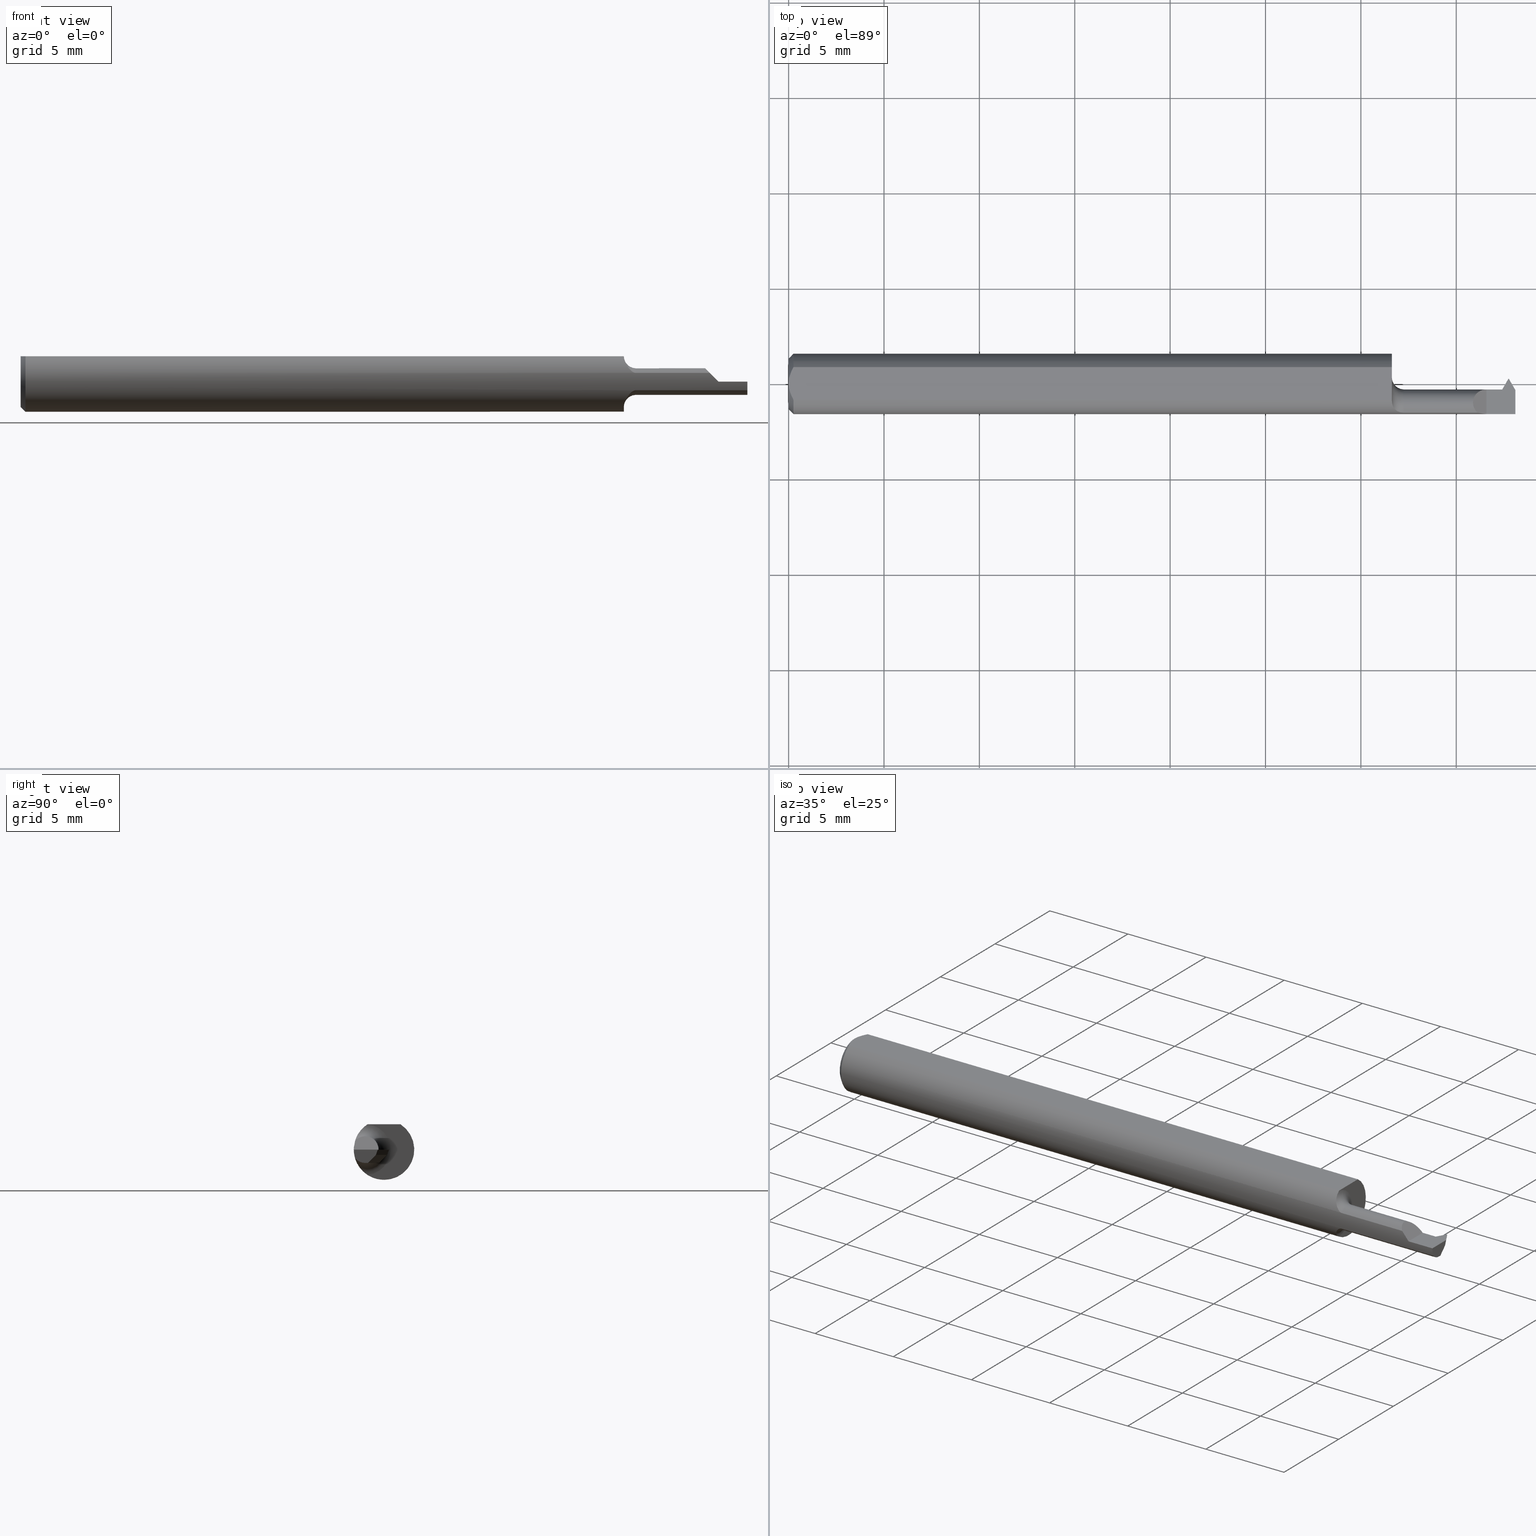
[diagram: canonical four-view strip — front | top / right | iso, engineering-drawing reading convention]
A machine part, canonical four-view strip (front | top / right | iso — engineering-drawing reading convention). The complete STEP part file that produces these views, byte-faithful:
ISO-10303-21;
HEADER;
FILE_DESCRIPTION (( 'STEP AP203' ),
    '1' );
FILE_NAME ('230031-TT075200.STEP',
    '2025-04-25T21:40:48',
    ( '' ),
    ( '' ),
    'SwSTEP 2.0',
    'SolidWorks 2024',
    '' );
FILE_SCHEMA (( 'CONFIG_CONTROL_DESIGN' ));
ENDSEC;

DATA;
#1 = LINE ( 'NONE', #129, #562 ) ;
#2 = EDGE_CURVE ( 'NONE', #265, #480, #497, .T. ) ;
#3 = CARTESIAN_POINT ( 'NONE',  ( 1.252811054366238741, -0.05456945414940287536, -0.03043068662638008862 ) ) ;
#4 = TOROIDAL_SURFACE ( 'NONE', #765, 0.05250000000000002581, 0.02499999999999993894 ) ;
#5 = AXIS2_PLACEMENT_3D ( 'NONE', #143, #526, #756 ) ;
#6 = EDGE_CURVE ( 'NONE', #246, #109, #758, .T. ) ;
#7 = EDGE_LOOP ( 'NONE', ( #553, #686, #362 ) ) ;
#8 = CARTESIAN_POINT ( 'NONE',  ( 1.244999999999999885, 0.06234999999999996795, 0.000000000000000000 ) ) ;
#9 = ORIENTED_EDGE ( 'NONE', *, *, #6, .F. ) ;
#10 = CC_DESIGN_APPROVAL ( #709, ( #159 ) ) ;
#11 = ORIENTED_EDGE ( 'NONE', *, *, #622, .T. ) ;
#12 = CARTESIAN_POINT ( 'NONE',  ( 1.540584186718110260, -0.4592466781530761266, -0.5722278292539604294 ) ) ;
#13 = EDGE_LOOP ( 'NONE', ( #769, #490 ) ) ;
#14 = B_SPLINE_CURVE_WITH_KNOTS ( 'NONE', 3,
 ( #253, #73, #330, #68, #320, #133, #3, #141, #264, #566, #625, #390 ),
 .UNSPECIFIED., .F., .F.,
 ( 4, 2, 2, 2, 2, 4 ),
 ( 1.964775102937643306E-07, 0.0001727984807541077690, 0.0003454004839979218119, 0.0006906044904855495725, 0.001035808496973177496, 0.001381012503460805202 ),
 .UNSPECIFIED. ) ;
#15 = ORIENTED_EDGE ( 'NONE', *, *, #347, .F. ) ;
#16 =( BOUNDED_CURVE ( )  B_SPLINE_CURVE ( 3, ( #447, #316, #690, #78 ),
 .UNSPECIFIED., .F., .T. ) 
 B_SPLINE_CURVE_WITH_KNOTS ( ( 4, 4 ),
 ( 1.204277183876086177, 1.570796326794897668 ),
 .UNSPECIFIED. ) 
 CURVE ( )  GEOMETRIC_REPRESENTATION_ITEM ( )  RATIONAL_B_SPLINE_CURVE ( ( 1.000000000000000000, 0.9888366050426361520, 0.9888366050426361520, 1.000000000000000000 ) ) 
 REPRESENTATION_ITEM ( '' )  );
#17 = MECHANICAL_CONTEXT ( 'NONE', #131, 'mechanical' ) ;
#18 = EDGE_CURVE ( 'NONE', #754, #653, #322, .T. ) ;
#19 = ORIENTED_EDGE ( 'NONE', *, *, #49, .T. ) ;
#20 = VECTOR ( 'NONE', #716, 39.37007874015748143 ) ;
#21 = LINE ( 'NONE', #467, #35 ) ;
#22 = CALENDAR_DATE ( 2025, 25, 4 ) ;
#23 = ORIENTED_EDGE ( 'NONE', *, *, #2, .T. ) ;
#24 = LINE ( 'NONE', #40, #169 ) ;
#25 = CARTESIAN_POINT ( 'NONE',  ( 1.475228371895891621, -0.02177601815582000389, -0.02155757741455697346 ) ) ;
#26 = AXIS2_PLACEMENT_3D ( 'NONE', #135, #550, #556 ) ;
#27 = COORDINATED_UNIVERSAL_TIME_OFFSET ( 8, 0, .BEHIND. ) ;
#28 = ORIENTED_EDGE ( 'NONE', *, *, #560, .F. ) ;
#29 = DIRECTION ( 'NONE',  ( 0.000000000000000000, 0.000000000000000000, 1.000000000000000000 ) ) ;
#30 = EDGE_CURVE ( 'NONE', #603, #104, #251, .T. ) ;
#31 = LINE ( 'NONE', #588, #386 ) ;
#32 = ORIENTED_EDGE ( 'NONE', *, *, #108, .T. ) ;
#33 = CARTESIAN_POINT ( 'NONE',  ( 1.244999999999999885, -0.03398449163449160371, 0.05227405502106346330 ) ) ;
#34 = DIRECTION ( 'NONE',  ( 0.000000000000000000, 1.000000000000000000, 0.000000000000000000 ) ) ;
#35 = VECTOR ( 'NONE', #712, 39.37007874015748143 ) ;
#36 = EDGE_CURVE ( 'NONE', #311, #395, #267, .T. ) ;
#37 = VECTOR ( 'NONE', #280, 39.37007874015748143 ) ;
#38 = CARTESIAN_POINT ( 'NONE',  ( 0.004671770759546948343, 0.02323517832780106970, 0.05234999999999998682 ) ) ;
#39 = EDGE_LOOP ( 'NONE', ( #84, #718, #32, #256 ) ) ;
#40 = CARTESIAN_POINT ( 'NONE',  ( 1.472798294077828807, -0.01134999999999997816, 0.000000000000000000 ) ) ;
#41 = CARTESIAN_POINT ( 'NONE',  ( -3.937007874019685528E-05, -0.01007250438538935533, -0.02750000000000004871 ) ) ;
#42 = ADVANCED_FACE ( 'NONE', ( #134 ), #559, .F. ) ;
#43 = VERTEX_POINT ( 'NONE', #627 ) ;
#44 = DIRECTION ( 'NONE',  ( -0.1046361662350182992, 0.1812351562282726036, 0.9778573980200545579 ) ) ;
#45 = DIRECTION ( 'NONE',  ( 1.000000000000000000, 0.000000000000000000, 0.000000000000000000 ) ) ;
#46 = PERSON_AND_ORGANIZATION_ROLE ( 'creator' ) ;
#47 = ORIENTED_EDGE ( 'NONE', *, *, #36, .F. ) ;
#48 = CARTESIAN_POINT ( 'NONE',  ( 1.433925765466284474, -0.06235000000000000264, 0.006074234533715691838 ) ) ;
#49 = EDGE_CURVE ( 'NONE', #653, #442, #184, .T. ) ;
#50 = PLANE ( 'NONE',  #474 ) ;
#51 = AXIS2_PLACEMENT_3D ( 'NONE', #271, #302, #789 ) ;
#52 = AXIS2_PLACEMENT_3D ( 'NONE', #263, #502, #431 ) ;
#53 = EDGE_LOOP ( 'NONE', ( #776, #752, #780, #268 ) ) ;
#54 = CARTESIAN_POINT ( 'NONE',  ( 1.422097359848866427, -0.05972451737451732467, 0.01790264015113353369 ) ) ;
#55 = CARTESIAN_POINT ( 'NONE',  ( 1.269999999999999796, -0.03885000000000005116, 0.000000000000000000 ) ) ;
#56 = SHAPE_DEFINITION_REPRESENTATION ( #244, #665 ) ;
#57 = ORIENTED_EDGE ( 'NONE', *, *, #374, .T. ) ;
#58 = VECTOR ( 'NONE', #680, 39.37007874015748143 ) ;
#59 = DIRECTION ( 'NONE',  ( 0.1792828666815822758, 0.1792828666815822758, 0.9673237862416430577 ) ) ;
#60 = CARTESIAN_POINT ( 'NONE',  ( 1.246872896884827719, -0.04792976935622884210, 0.04070915924459904411 ) ) ;
#61 = CC_DESIGN_DATE_AND_TIME_ASSIGNMENT ( #343, #584, ( #346 ) ) ;
#62 = EDGE_CURVE ( 'NONE', #384, #104, #427, .T. ) ;
#63 = VERTEX_POINT ( 'NONE', #673 ) ;
#64 = CARTESIAN_POINT ( 'NONE',  ( 1.477845221227575889, -1.467139412990697611, 0.2210293736655665475 ) ) ;
#65 = VERTEX_POINT ( 'NONE', #579 ) ;
#66 = VECTOR ( 'NONE', #414, 39.37007874015748854 ) ;
#67 = LINE ( 'NONE', #420, #398 ) ;
#68 = CARTESIAN_POINT ( 'NONE',  ( 1.261629367809834701, -0.05874277173330420820, -0.02093341624382459229 ) ) ;
#69 = FACE_OUTER_BOUND ( 'NONE', #657, .T. ) ;
#70 = ORIENTED_EDGE ( 'NONE', *, *, #383, .F. ) ;
#71 = ADVANCED_FACE ( 'NONE', ( #634 ), #450, .F. ) ;
#72 = ORIENTED_EDGE ( 'NONE', *, *, #699, .F. ) ;
#73 = CARTESIAN_POINT ( 'NONE',  ( 1.267694442236319663, -0.05972451737451730386, -0.01790264015113365859 ) ) ;
#74 = VERTEX_POINT ( 'NONE', #693 ) ;
#75 = AXIS2_PLACEMENT_3D ( 'NONE', #283, #162, #217 ) ;
#76 = CLOSED_SHELL ( 'NONE', ( #81, #571, #518, #191, #334, #509, #275, #607, #214, #42, #766, #636, #71, #561, #614, #167, #312, #755, #471, #649, #740, #496, #711 ) ) ;
#77 = ORIENTED_EDGE ( 'NONE', *, *, #139, .T. ) ;
#78 = CARTESIAN_POINT ( 'NONE',  ( 1.469798294077828693, -0.01134999999999997816, 0.000000000000000000 ) ) ;
#79 = ORIENTED_EDGE ( 'NONE', *, *, #139, .F. ) ;
#80 = CARTESIAN_POINT ( 'NONE',  ( 1.473975355100137330, -0.01338872949424683295, -0.01099999999999985191 ) ) ;
#81 = ADVANCED_FACE ( 'NONE', ( #702 ), #258, .T. ) ;
#82 = EDGE_LOOP ( 'NONE', ( #723, #418, #477, #335, #413, #663 ) ) ;
#83 = CARTESIAN_POINT ( 'NONE',  ( 1.500000000000000222, -0.05972451737451735243, -0.01790264015113356491 ) ) ;
#84 = ORIENTED_EDGE ( 'NONE', *, *, #198, .F. ) ;
#85 = DIRECTION ( 'NONE',  ( 0.000000000000000000, 1.862623632043813590E-15, 1.000000000000000000 ) ) ;
#86 = CARTESIAN_POINT ( 'NONE',  ( 1.485500000000000265, 0.01064999999999999454, 0.000000000000000000 ) ) ;
#87 =( LENGTH_UNIT ( ) NAMED_UNIT ( * ) SI_UNIT ( $, .METRE. ) );
#88 = VERTEX_POINT ( 'NONE', #86 ) ;
#89 = EDGE_CURVE ( 'NONE', #593, #729, #147, .T. ) ;
#90 = CARTESIAN_POINT ( 'NONE',  ( 1.486583741998942054, -0.01007250438538935186, -0.02750000000000004871 ) ) ;
#91 = DIRECTION ( 'NONE',  ( -1.000000000000000000, -0.000000000000000000, -0.000000000000000000 ) ) ;
#92 = DATE_AND_TIME ( #460, #274 ) ;
#93 = ORIENTED_EDGE ( 'NONE', *, *, #542, .T. ) ;
#94 = CARTESIAN_POINT ( 'NONE',  ( 1.440000000000000169, -0.2500000000000000555, 7.347880794884152277E-18 ) ) ;
#95 = EDGE_CURVE ( 'NONE', #461, #683, #601, .T. ) ;
#96 = CARTESIAN_POINT ( 'NONE',  ( 1.670798294077828761, -0.03884999999999987769, -0.02750000000000004871 ) ) ;
#97 = PERSON_AND_ORGANIZATION ( #338, #174 ) ;
#98 = ORIENTED_EDGE ( 'NONE', *, *, #49, .F. ) ;
#99 = DIRECTION ( 'NONE',  ( -1.000000000000000000, -0.000000000000000000, -0.000000000000000000 ) ) ;
#100 = PLANE ( 'NONE',  #51 ) ;
#101 = AXIS2_PLACEMENT_3D ( 'NONE', #229, #643, #697 ) ;
#102 = VECTOR ( 'NONE', #328, 39.37007874015748854 ) ;
#103 = CARTESIAN_POINT ( 'NONE',  ( 1.485500000000000265, 0.01064999999999999454, 0.000000000000000000 ) ) ;
#104 = VERTEX_POINT ( 'NONE', #522 ) ;
#105 = DIRECTION ( 'NONE',  ( 0.000000000000000000, 0.000000000000000000, -1.000000000000000000 ) ) ;
#106 = CARTESIAN_POINT ( 'NONE',  ( 1.422097359848866427, -0.05972451737451732467, 0.01790264015113353369 ) ) ;
#107 = LOCAL_TIME ( 14, 40, 48.00000000000000000, #728 ) ;
#108 = EDGE_CURVE ( 'NONE', #505, #453, #31, .T. ) ;
#109 = VERTEX_POINT ( 'NONE', #510 ) ;
#110 = DIRECTION ( 'NONE',  ( 0.000000000000000000, 0.000000000000000000, -1.000000000000000000 ) ) ;
#111 = CARTESIAN_POINT ( 'NONE',  ( 1.244999999999999885, -0.03386738844375228319, 0.05234999999999997294 ) ) ;
#112 = APPROVAL_DATE_TIME ( #435, #692 ) ;
#113 = EDGE_LOOP ( 'NONE', ( #140, #317, #506, #516, #228, #207, #225, #118, #626, #567, #400, #350, #424 ) ) ;
#114 = FACE_OUTER_BOUND ( 'NONE', #557, .T. ) ;
#115 = CARTESIAN_POINT ( 'NONE',  ( 1.473924189092572501, -0.01342367646772176307, -0.01049893562539213655 ) ) ;
#116 = CIRCLE ( 'NONE', #284, 0.02750000000000005565 ) ;
#117 = PERSON_AND_ORGANIZATION_ROLE ( 'classification_officer' ) ;
#118 = ORIENTED_EDGE ( 'NONE', *, *, #148, .F. ) ;
#119 = CARTESIAN_POINT ( 'NONE',  ( 1.244999999999999885, -0.03885000000000005116, 0.000000000000000000 ) ) ;
#120 = CARTESIAN_POINT ( 'NONE',  ( 1.473852846440464770, -0.01317653827132691906, -0.009855118612495666550 ) ) ;
#121 = APPROVAL_ROLE ( '' ) ;
#122 = VERTEX_POINT ( 'NONE', #764 ) ;
#123 = APPROVAL_PERSON_ORGANIZATION ( #232, #692, #121 ) ;
#124 = DIRECTION ( 'NONE',  ( 1.000000000000000000, 0.000000000000000000, 0.000000000000000000 ) ) ;
#125 = DIRECTION ( 'NONE',  ( 0.000000000000000000, 0.000000000000000000, -1.000000000000000000 ) ) ;
#126 = VECTOR ( 'NONE', #706, 39.37007874015748854 ) ;
#127 = DIRECTION ( 'NONE',  ( 1.000000000000000000, -0.000000000000000000, -0.000000000000000000 ) ) ;
#128 = EDGE_CURVE ( 'NONE', #63, #499, #771, .T. ) ;
#129 = CARTESIAN_POINT ( 'NONE',  ( -3.937007874019685528E-05, 0.006427495614610498863, -0.01100000000000000110 ) ) ;
#130 = AXIS2_PLACEMENT_3D ( 'NONE', #172, #124, #110 ) ;
#131 = APPLICATION_CONTEXT ( 'configuration controlled 3d designs of mechanical parts and assemblies' ) ;
#132 = CARTESIAN_POINT ( 'NONE',  ( 1.500000000000000222, -0.01681014489067392606, -0.01099999999999985191 ) ) ;
#133 = CARTESIAN_POINT ( 'NONE',  ( 1.255286990740070774, -0.05631994730899902296, -0.02695336005890132738 ) ) ;
#134 = FACE_OUTER_BOUND ( 'NONE', #53, .T. ) ;
#135 = CARTESIAN_POINT ( 'NONE',  ( 1.486000000000000210, 0.007438566415290092868, -0.01099999999999985191 ) ) ;
#136 = ORIENTED_EDGE ( 'NONE', *, *, #242, .F. ) ;
#137 = AXIS2_PLACEMENT_3D ( 'NONE', #638, #150, #105 ) ;
#138 = VECTOR ( 'NONE', #91, 39.37007874015748143 ) ;
#139 = EDGE_CURVE ( 'NONE', #442, #109, #594, .T. ) ;
#140 = ORIENTED_EDGE ( 'NONE', *, *, #236, .F. ) ;
#141 = CARTESIAN_POINT ( 'NONE',  ( 1.248887425056099953, -0.05018493426212367742, -0.03721994610182897956 ) ) ;
#142 = ORIENTED_EDGE ( 'NONE', *, *, #383, .T. ) ;
#143 = CARTESIAN_POINT ( 'NONE',  ( 0.000000000000000000, 0.000000000000000000, 0.000000000000000000 ) ) ;
#144 = APPROVAL_ROLE ( '' ) ;
#145 = EDGE_LOOP ( 'NONE', ( #309, #456, #585, #178 ) ) ;
#146 = LINE ( 'NONE', #340, #546 ) ;
#147 = LINE ( 'NONE', #463, #183 ) ;
#148 = EDGE_CURVE ( 'NONE', #149, #265, #644, .T. ) ;
#149 = VERTEX_POINT ( 'NONE', #353 ) ;
#150 = DIRECTION ( 'NONE',  ( -1.000000000000000000, -0.000000000000000000, -0.000000000000000000 ) ) ;
#151 = AXIS2_PLACEMENT_3D ( 'NONE', #788, #478, #677 ) ;
#152 = VECTOR ( 'NONE', #368, 39.37007874015748143 ) ;
#153 = LINE ( 'NONE', #285, #126 ) ;
#154 = DIRECTION ( 'NONE',  ( 0.4999999999999915068, 0.8660254037844434816, -0.000000000000000000 ) ) ;
#155 = EDGE_CURVE ( 'NONE', #74, #524, #205, .T. ) ;
#156 = ORIENTED_EDGE ( 'NONE', *, *, #89, .T. ) ;
#157 = CARTESIAN_POINT ( 'NONE',  ( 1.244999999999999885, -0.03398449163449160371, -0.05227405502106346330 ) ) ;
#158 = DIRECTION ( 'NONE',  ( 0.4999999999999948375, -0.8660254037844414832, 0.000000000000000000 ) ) ;
#159 = PRODUCT_DEFINITION_FORMATION_WITH_SPECIFIED_SOURCE ( 'ANY', '', #604, .NOT_KNOWN. ) ;
#160 = CARTESIAN_POINT ( 'NONE',  ( 0.01000000000000001582, 0.03386738844375224849, 0.05234999999999997294 ) ) ;
#161 = ORIENTED_EDGE ( 'NONE', *, *, #379, .T. ) ;
#162 = DIRECTION ( 'NONE',  ( -1.000000000000000000, -1.134245723387741042E-16, -0.000000000000000000 ) ) ;
#163 = DIRECTION ( 'NONE',  ( 0.4999999999999950595, 0.8660254037844414832, 0.000000000000000000 ) ) ;
#164 = DIRECTION ( 'NONE',  ( 0.000000000000000000, 0.000000000000000000, 1.000000000000000000 ) ) ;
#165 = VERTEX_POINT ( 'NONE', #337 ) ;
#166 = CARTESIAN_POINT ( 'NONE',  ( 1.519300745890475923, 0.04861715022753532872, -0.02750000000000004524 ) ) ;
#167 = ADVANCED_FACE ( 'NONE', ( #402 ), #761, .F. ) ;
#168 = DIRECTION ( 'NONE',  ( 0.000000000000000000, -0.7071067811865516806, 0.7071067811865434649 ) ) ;
#169 = VECTOR ( 'NONE', #710, 39.37007874015748143 ) ;
#170 = CALENDAR_DATE ( 2025, 25, 4 ) ;
#171 = ORIENTED_EDGE ( 'NONE', *, *, #393, .T. ) ;
#172 = CARTESIAN_POINT ( 'NONE',  ( 0.000000000000000000, 0.000000000000000000, 0.000000000000000000 ) ) ;
#173 = LINE ( 'NONE', #596, #20 ) ;
#174 = ORGANIZATION ( 'UNSPECIFIED', 'UNSPECIFIED', '' ) ;
#175 = VERTEX_POINT ( 'NONE', #83 ) ;
#176 = CARTESIAN_POINT ( 'NONE',  ( 1.440000000000000169, -0.06235000000000005121, 7.347880794884152277E-18 ) ) ;
#177 = CARTESIAN_POINT ( 'NONE',  ( 1.269999999999999796, -0.05972451737451657527, 0.01790264015113448431 ) ) ;
#178 = ORIENTED_EDGE ( 'NONE', *, *, #423, .T. ) ;
#179 = CARTESIAN_POINT ( 'NONE',  ( 1.473975355100137330, -0.01338872949424683295, -0.01099999999999985191 ) ) ;
#180 = CARTESIAN_POINT ( 'NONE',  ( 1.259871710243715137, -0.05820719995804415903, 0.02240966757376053678 ) ) ;
#181 = AXIS2_PLACEMENT_3D ( 'NONE', #96, #348, #332 ) ;
#182 = DATE_AND_TIME ( #417, #371 ) ;
#183 = VECTOR ( 'NONE', #163, 39.37007874015748143 ) ;
#184 = LINE ( 'NONE', #80, #102 ) ;
#185 = CARTESIAN_POINT ( 'NONE',  ( 1.485424964465435815, 0.006866499752077809618, -0.009856355122128547530 ) ) ;
#186 = EDGE_CURVE ( 'NONE', #603, #453, #153, .T. ) ;
#187 = CARTESIAN_POINT ( 'NONE',  ( 1.474005759765332213, -0.01389871478465289079, -0.01156264771531032021 ) ) ;
#188 = DIRECTION ( 'NONE',  ( -0.8515237283461074558, -0.4916274537819723123, 0.1822355254921479151 ) ) ;
#189 = CC_DESIGN_PERSON_AND_ORGANIZATION_ASSIGNMENT ( #656, #117, ( #208 ) ) ;
#190 = DIRECTION ( 'NONE',  ( -0.5000000000000015543, 0.8660254037844377084, 3.119271837524094513E-17 ) ) ;
#191 = ADVANCED_FACE ( 'NONE', ( #408 ), #454, .F. ) ;
#192 = DIRECTION ( 'NONE',  ( -0.09252987390808030399, 0.6193650116388615956, 0.7796314544656004486 ) ) ;
#193 = CARTESIAN_POINT ( 'NONE',  ( 1.473975355100137330, -0.01338872949424683295, -0.01099999999999985191 ) ) ;
#194 = EDGE_LOOP ( 'NONE', ( #19, #136 ) ) ;
#195 = VECTOR ( 'NONE', #154, 39.37007874015748854 ) ;
#196 = ORIENTED_EDGE ( 'NONE', *, *, #687, .T. ) ;
#197 = CARTESIAN_POINT ( 'NONE',  ( 1.545098401148438105, -0.1114228670198910143, -0.02750000000000005218 ) ) ;
#198 = EDGE_CURVE ( 'NONE', #122, #603, #582, .T. ) ;
#199 = EDGE_CURVE ( 'NONE', #683, #590, #21, .T. ) ;
#200 = ORIENTED_EDGE ( 'NONE', *, *, #364, .T. ) ;
#201 = VERTEX_POINT ( 'NONE', #650 ) ;
#202 = CARTESIAN_POINT ( 'NONE',  ( 1.473975355100137330, -0.01385409030504961350, -0.01146536081080263246 ) ) ;
#203 = ORIENTED_EDGE ( 'NONE', *, *, #323, .T. ) ;
#204 = AXIS2_PLACEMENT_3D ( 'NONE', #351, #774, #587 ) ;
#205 = LINE ( 'NONE', #392, #138 ) ;
#206 = DIRECTION ( 'NONE',  ( -0.01917015588245217159, 0.9998162356770579073, 4.453805290402601915E-17 ) ) ;
#207 = ORIENTED_EDGE ( 'NONE', *, *, #286, .F. ) ;
#208 = SECURITY_CLASSIFICATION ( '', '', #735 ) ;
#209 = CARTESIAN_POINT ( 'NONE',  ( 1.473975355100137330, -0.02738463918919738574, -0.02499590969495040643 ) ) ;
#210 = APPROVAL_DATE_TIME ( #92, #721 ) ;
#211 = ORIENTED_EDGE ( 'NONE', *, *, #62, .T. ) ;
#212 = DIRECTION ( 'NONE',  ( -0.000000000000000000, 1.000000000000000000, -0.000000000000000000 ) ) ;
#213 = CARTESIAN_POINT ( 'NONE',  ( 0.000000000000000000, 0.000000000000000000, 0.000000000000000000 ) ) ;
#214 = ADVANCED_FACE ( 'NONE', ( #698 ), #100, .F. ) ;
#215 =( CONVERSION_BASED_UNIT ( 'INCH', #772 ) LENGTH_UNIT ( ) NAMED_UNIT ( #616 ) );
#216 = ORIENTED_EDGE ( 'NONE', *, *, #433, .T. ) ;
#217 = DIRECTION ( 'NONE',  ( 0.000000000000000000, -1.000000000000000000, 0.000000000000000000 ) ) ;
#218 = VECTOR ( 'NONE', #226, 39.37007874015748143 ) ;
#219 = CARTESIAN_POINT ( 'NONE',  ( 0.000000000000000000, -0.03386738844375224849, 0.05234999999999997294 ) ) ;
#220 = APPROVAL_STATUS ( 'not_yet_approved' ) ;
#221 = EDGE_LOOP ( 'NONE', ( #795, #704, #676, #233, #637 ) ) ;
#222 = CARTESIAN_POINT ( 'NONE',  ( 0.007163450771350545095, -0.02864528976618617440, 0.05234999999999997294 ) ) ;
#223 = CARTESIAN_POINT ( 'NONE',  ( 1.486000000000000210, 0.007438566415290092868, -0.01099999999999985191 ) ) ;
#224 = LOCAL_TIME ( 14, 40, 48.00000000000000000, #790 ) ;
#225 = ORIENTED_EDGE ( 'NONE', *, *, #2, .F. ) ;
#226 = DIRECTION ( 'NONE',  ( -1.134245723387741042E-16, 1.000000000000000000, 0.000000000000000000 ) ) ;
#227 = CARTESIAN_POINT ( 'NONE',  ( 1.476170497951057259, -0.03885000000000002340, -0.02750000000000005218 ) ) ;
#228 = ORIENTED_EDGE ( 'NONE', *, *, #678, .F. ) ;
#229 = CARTESIAN_POINT ( 'NONE',  ( 0.000000000000000000, 0.000000000000000000, 0.000000000000000000 ) ) ;
#230 = CARTESIAN_POINT ( 'NONE',  ( 1.485500000000000265, 0.01064999999999999454, 0.000000000000000000 ) ) ;
#231 = B_SPLINE_CURVE_WITH_KNOTS ( 'NONE', 3,
 ( #361, #534, #60, #666, #726, #180, #430, #672, #538, #177 ),
 .UNSPECIFIED., .F., .F.,
 ( 4, 2, 2, 2, 4 ),
 ( 3.875135730125662611E-06, 0.0006911681331154243164, 0.001034814631808078081, 0.001206637881154398132, 0.001378461130500717967 ),
 .UNSPECIFIED. ) ;
#232 = PERSON_AND_ORGANIZATION ( #338, #174 ) ;
#233 = ORIENTED_EDGE ( 'NONE', *, *, #767, .F. ) ;
#234 = FACE_OUTER_BOUND ( 'NONE', #598, .T. ) ;
#235 = FACE_OUTER_BOUND ( 'NONE', #783, .T. ) ;
#236 = EDGE_CURVE ( 'NONE', #175, #580, #731, .T. ) ;
#237 = VECTOR ( 'NONE', #646, 39.37007874015748143 ) ;
#238 = CALENDAR_DATE ( 2025, 25, 4 ) ;
#239 = ORIENTED_EDGE ( 'NONE', *, *, #301, .F. ) ;
#240 = CARTESIAN_POINT ( 'NONE',  ( 1.486500000000000155, 0.01064999999999999454, 0.000000000000000000 ) ) ;
#241 = CARTESIAN_POINT ( 'NONE',  ( 1.269999999999999796, -0.05972451737451657527, 0.01790264015113448431 ) ) ;
#242 = EDGE_CURVE ( 'NONE', #653, #442, #116, .T. ) ;
#243 = ORIENTED_EDGE ( 'NONE', *, *, #699, .T. ) ;
#244 = PRODUCT_DEFINITION_SHAPE ( 'NONE', 'NONE',  #346 ) ;
#245 = DIRECTION ( 'NONE',  ( -1.000000000000000000, 0.000000000000000000, -0.000000000000000000 ) ) ;
#246 = VERTEX_POINT ( 'NONE', #227 ) ;
#247 = DIRECTION ( 'NONE',  ( 0.4999999999999915068, 0.8660254037844434816, 0.000000000000000000 ) ) ;
#248 = CIRCLE ( 'NONE', #688, 0.02750000000000003136 ) ;
#249 =( BOUNDED_CURVE ( )  B_SPLINE_CURVE ( 3, ( #602, #426, #115, #366 ),
 .UNSPECIFIED., .F., .F. ) 
 B_SPLINE_CURVE_WITH_KNOTS ( ( 4, 4 ),
 ( 4.453915720960718083, 4.529129408925288480 ),
 .UNSPECIFIED. ) 
 CURVE ( )  GEOMETRIC_REPRESENTATION_ITEM ( )  RATIONAL_B_SPLINE_CURVE ( ( 1.000000000000000000, 0.9995286306529715947, 0.9995286306529715947, 1.000000000000000000 ) ) 
 REPRESENTATION_ITEM ( '' )  );
#250 = AXIS2_PLACEMENT_3D ( 'NONE', #213, #458, #630 ) ;
#251 = LINE ( 'NONE', #132, #586 ) ;
#252 = DIRECTION ( 'NONE',  ( -0.7071067811865503483, 0.000000000000000000, 0.7071067811865445751 ) ) ;
#253 = CARTESIAN_POINT ( 'NONE',  ( 1.269999999999999796, -0.05972451737451730386, -0.01790264015113363777 ) ) ;
#254 = EDGE_CURVE ( 'NONE', #754, #593, #173, .T. ) ;
#255 = CARTESIAN_POINT ( 'NONE',  ( 1.244999999999999885, 0.03386738844375224849, 0.05234999999999997294 ) ) ;
#256 = ORIENTED_EDGE ( 'NONE', *, *, #186, .F. ) ;
#257 = CIRCLE ( 'NONE', #574, 0.06235000000000000264 ) ;
#258 = CONICAL_SURFACE ( 'NONE', #5, 0.05235000000000005621, 0.7853981633974447263 ) ;
#259 = CARTESIAN_POINT ( 'NONE',  ( 1.409553586986023621, -0.01134999999999997816, 0.03044641301397626662 ) ) ;
#260 = ORIENTED_EDGE ( 'NONE', *, *, #18, .F. ) ;
#261 = DIRECTION ( 'NONE',  ( 1.000000000000000000, 1.134245723387741042E-16, 0.000000000000000000 ) ) ;
#262 = ORIENTED_EDGE ( 'NONE', *, *, #778, .F. ) ;
#263 = CARTESIAN_POINT ( 'NONE',  ( 1.472798294077828807, -0.01134999999999997816, 0.000000000000000000 ) ) ;
#264 = CARTESIAN_POINT ( 'NONE',  ( 1.247409451668646696, -0.04748097443779549648, -0.04064880203371788042 ) ) ;
#265 = VERTEX_POINT ( 'NONE', #111 ) ;
#266 = DESIGN_CONTEXT ( 'detailed design', #529, 'design' ) ;
#267 = LINE ( 'NONE', #787, #367 ) ;
#268 = ORIENTED_EDGE ( 'NONE', *, *, #464, .T. ) ;
#269 = VECTOR ( 'NONE', #212, 39.37007874015748143 ) ;
#270 = CC_DESIGN_PERSON_AND_ORGANIZATION_ASSIGNMENT ( #97, #753, ( #604 ) ) ;
#271 = CARTESIAN_POINT ( 'NONE',  ( 1.477845221227575889, -1.467139412990697611, 0.2210293736655665475 ) ) ;
#272 = ORIENTED_EDGE ( 'NONE', *, *, #493, .T. ) ;
#273 = CARTESIAN_POINT ( 'NONE',  ( 0.000000000000000000, 0.000000000000000000, -0.05235000000000005621 ) ) ;
#274 = LOCAL_TIME ( 14, 40, 48.00000000000000000, #27 ) ;
#275 = ADVANCED_FACE ( 'NONE', ( #479 ), #50, .F. ) ;
#276 = CARTESIAN_POINT ( 'NONE',  ( 1.244999999999999885, 0.000000000000000000, 0.000000000000000000 ) ) ;
#277 = CARTESIAN_POINT ( 'NONE',  ( 1.476242022668969200, -0.04258035955781486193, -0.02750000000000004871 ) ) ;
#278 = ORIENTED_EDGE ( 'NONE', *, *, #108, .F. ) ;
#279 = CARTESIAN_POINT ( 'NONE',  ( 1.500000000000000222, -0.03884999999999987769, -0.02750000000000004871 ) ) ;
#280 = DIRECTION ( 'NONE',  ( 1.000000000000000000, -0.000000000000000000, -0.000000000000000000 ) ) ;
#281 = CARTESIAN_POINT ( 'NONE',  ( 0.000000000000000000, 0.000000000000000000, 0.000000000000000000 ) ) ;
#282 = ORIENTED_EDGE ( 'NONE', *, *, #236, .T. ) ;
#283 = CARTESIAN_POINT ( 'NONE',  ( 1.244999999999999885, -0.03885000000000005116, 0.000000000000000000 ) ) ;
#284 = AXIS2_PLACEMENT_3D ( 'NONE', #660, #476, #422 ) ;
#285 = CARTESIAN_POINT ( 'NONE',  ( 1.500000000000000222, -0.01119453205191844533, 0.004149567757916081297 ) ) ;
#286 = EDGE_CURVE ( 'NONE', #480, #331, #231, .T. ) ;
#287 = APPROVAL_STATUS ( 'not_yet_approved' ) ;
#288 = ORIENTED_EDGE ( 'NONE', *, *, #622, .F. ) ;
#289 = CARTESIAN_POINT ( 'NONE',  ( 1.500000000000000222, 0.000000000000000000, 0.000000000000000000 ) ) ;
#290 = DIRECTION ( 'NONE',  ( 1.000000000000000000, 0.000000000000000000, 0.000000000000000000 ) ) ;
#291 = ORIENTED_EDGE ( 'NONE', *, *, #242, .T. ) ;
#292 = CARTESIAN_POINT ( 'NONE',  ( 1.500000000000000222, -0.01273268590218017658, 0.000000000000000000 ) ) ;
#293 = LINE ( 'NONE', #779, #488 ) ;
#294 = ORIENTED_EDGE ( 'NONE', *, *, #671, .T. ) ;
#295 = CARTESIAN_POINT ( 'NONE',  ( 0.000000000000000000, 0.000000000000000000, 0.05234999999999997294 ) ) ;
#296 = CC_DESIGN_PERSON_AND_ORGANIZATION_ASSIGNMENT ( #695, #707, ( #346 ) ) ;
#297 = DIRECTION ( 'NONE',  ( 0.8515237283461094542, -0.4916274537819689816, 0.1822355254921479151 ) ) ;
#298 = PERSON_AND_ORGANIZATION ( #338, #174 ) ;
#299 = ORIENTED_EDGE ( 'NONE', *, *, #475, .F. ) ;
#300 = DIRECTION ( 'NONE',  ( 1.000000000000000000, 1.134245723387741042E-16, 0.000000000000000000 ) ) ;
#301 = EDGE_CURVE ( 'NONE', #754, #311, #249, .T. ) ;
#302 = DIRECTION ( 'NONE',  ( 0.9945105694338485236, 0.01906842673932246032, 0.1028840239592603983 ) ) ;
#303 = VECTOR ( 'NONE', #595, 39.37007874015748854 ) ;
#304 = CARTESIAN_POINT ( 'NONE',  ( 1.475228371895891621, -0.02177601815582000389, -0.02155757741455697346 ) ) ;
#305 = LINE ( 'NONE', #310, #651 ) ;
#306 = ORIENTED_EDGE ( 'NONE', *, *, #551, .F. ) ;
#307 = DIRECTION ( 'NONE',  ( -1.000000000000000000, -1.134245723387741042E-16, -0.000000000000000000 ) ) ;
#308 = APPROVAL_DATE_TIME ( #182, #709 ) ;
#309 = ORIENTED_EDGE ( 'NONE', *, *, #727, .F. ) ;
#310 = CARTESIAN_POINT ( 'NONE',  ( 1.469798294077828693, -0.01134999999999997816, 0.000000000000000000 ) ) ;
#311 = VERTEX_POINT ( 'NONE', #120 ) ;
#312 = ADVANCED_FACE ( 'NONE', ( #235 ), #4, .F. ) ;
#313 = B_SPLINE_CURVE_WITH_KNOTS ( 'NONE', 3,
 ( #703, #575, #523, #38, #652, #160 ),
 .UNSPECIFIED., .F., .F.,
 ( 4, 2, 4 ),
 ( 0.003093386807937201569, 0.003544501666246021275, 0.003995616524554840981 ),
 .UNSPECIFIED. ) ;
#314 = CARTESIAN_POINT ( 'NONE',  ( 1.269999999999999796, -0.05972451737451730386, -0.01790264015113363777 ) ) ;
#315 = FACE_OUTER_BOUND ( 'NONE', #13, .T. ) ;
#316 = CARTESIAN_POINT ( 'NONE',  ( 1.468556368985876492, -0.01196571961165013472, -0.006700828162844590062 ) ) ;
#317 = ORIENTED_EDGE ( 'NONE', *, *, #439, .T. ) ;
#318 = CARTESIAN_POINT ( 'NONE',  ( 1.474035685581546851, -0.01394390647475401111, -0.01165967243955293511 ) ) ;
#319 = AXIS2_PLACEMENT_3D ( 'NONE', #289, #99, #29 ) ;
#320 = CARTESIAN_POINT ( 'NONE',  ( 1.259906005836843201, -0.05821839633500722200, -0.02238001840969571984 ) ) ;
#321 = EDGE_LOOP ( 'NONE', ( #291, #77, #9, #696, #409, #282, #564, #344, #243, #93, #513, #47, #239, #359 ) ) ;
#322 =( BOUNDED_CURVE ( )  B_SPLINE_CURVE ( 3, ( #609, #318, #187, #436 ),
 .UNSPECIFIED., .F., .F. ) 
 B_SPLINE_CURVE_WITH_KNOTS ( ( 4, 4 ),
 ( 3.485257986103865502, 3.496934258707131260 ),
 .UNSPECIFIED. ) 
 CURVE ( )  GEOMETRIC_REPRESENTATION_ITEM ( )  RATIONAL_B_SPLINE_CURVE ( ( 1.000000000000000000, 0.9999886387537773036, 0.9999886387537773036, 1.000000000000000000 ) ) 
 REPRESENTATION_ITEM ( '' )  );
#323 = EDGE_CURVE ( 'NONE', #331, #580, #613, .T. ) ;
#324 = CARTESIAN_POINT ( 'NONE',  ( 1.476170497951057259, -0.03885000000000002340, -0.02750000000000005218 ) ) ;
#325 = LINE ( 'NONE', #197, #640 ) ;
#326 = ORIENTED_EDGE ( 'NONE', *, *, #782, .F. ) ;
#327 = AXIS2_PLACEMENT_3D ( 'NONE', #281, #394, #412 ) ;
#328 = DIRECTION ( 'NONE',  ( 0.000000000000000000, -0.7071067811865474617, -0.7071067811865474617 ) ) ;
#329 = CC_DESIGN_DATE_AND_TIME_ASSIGNMENT ( #358, #527, ( #208 ) ) ;
#330 = CARTESIAN_POINT ( 'NONE',  ( 1.265495029312765585, -0.05949435531769821373, -0.01869071512488954326 ) ) ;
#331 = VERTEX_POINT ( 'NONE', #241 ) ;
#332 = DIRECTION ( 'NONE',  ( 0.000000000000000000, -1.000000000000000000, -4.502281087675398332E-17 ) ) ;
#333 = DIRECTION ( 'NONE',  ( 1.000000000000000000, 0.000000000000000000, 0.000000000000000000 ) ) ;
#334 = ADVANCED_FACE ( 'NONE', ( #482 ), #541, .F. ) ;
#335 = ORIENTED_EDGE ( 'NONE', *, *, #62, .F. ) ;
#336 = CARTESIAN_POINT ( 'NONE',  ( 0.000000000000000000, 0.000000000000000000, 0.05234999999999997294 ) ) ;
#337 = CARTESIAN_POINT ( 'NONE',  ( 1.475933643097290915, -0.02649687518732444028, -0.02750000000000004871 ) ) ;
#338 = PERSON ( 'UNSPECIFIED', 'UNSPECIFIED', 'UNSPECIFIED', ('UNSPECIFIED'), ('UNSPECIFIED'), ('UNSPECIFIED') ) ;
#339 = VERTEX_POINT ( 'NONE', #106 ) ;
#340 = CARTESIAN_POINT ( 'NONE',  ( 1.500000000000000222, 0.000000000000000000, 0.000000000000000000 ) ) ;
#341 =( GEOMETRIC_REPRESENTATION_CONTEXT ( 3 ) GLOBAL_UNCERTAINTY_ASSIGNED_CONTEXT ( ( #750 ) ) GLOBAL_UNIT_ASSIGNED_CONTEXT ( ( #215, #468, #403 ) ) REPRESENTATION_CONTEXT ( 'NONE', 'WORKASPACE' ) );
#342 = DIRECTION ( 'NONE',  ( -1.224646799147360849E-16, 0.000000000000000000, -1.000000000000000000 ) ) ;
#343 = DATE_AND_TIME ( #22, #407 ) ;
#344 = ORIENTED_EDGE ( 'NONE', *, *, #678, .T. ) ;
#345 = LINE ( 'NONE', #94, #269 ) ;
#346 = PRODUCT_DEFINITION ( 'UNKNOWN', '', #159, #266 ) ;
#347 = EDGE_CURVE ( 'NONE', #65, #590, #554, .T. ) ;
#348 = DIRECTION ( 'NONE',  ( 0.000000000000000000, -4.502281087675398332E-17, 1.000000000000000000 ) ) ;
#349 = LINE ( 'NONE', #103, #195 ) ;
#350 = ORIENTED_EDGE ( 'NONE', *, *, #95, .F. ) ;
#351 = CARTESIAN_POINT ( 'NONE',  ( 1.473975355100137330, 0.02743856641529008808, -0.01099999999999985191 ) ) ;
#352 = CIRCLE ( 'NONE', #319, 0.06235000000000000264 ) ;
#353 = CARTESIAN_POINT ( 'NONE',  ( 0.01000000000000001582, -0.03386738844375224849, 0.05234999999999997294 ) ) ;
#354 = ORIENTED_EDGE ( 'NONE', *, *, #379, .F. ) ;
#355 = CARTESIAN_POINT ( 'NONE',  ( 1.485416258001057921, 0.006427495614615525224, -0.01099999999999497387 ) ) ;
#356 = CC_DESIGN_SECURITY_CLASSIFICATION ( #208, ( #159 ) ) ;
#357 = DIRECTION ( 'NONE',  ( 0.000000000000000000, -1.000000000000000000, 0.000000000000000000 ) ) ;
#358 = DATE_AND_TIME ( #238, #107 ) ;
#359 = ORIENTED_EDGE ( 'NONE', *, *, #18, .T. ) ;
#360 = LINE ( 'NONE', #373, #303 ) ;
#361 = CARTESIAN_POINT ( 'NONE',  ( 1.244999999999999885, -0.03398449163449160371, 0.05227405502106346330 ) ) ;
#362 = ORIENTED_EDGE ( 'NONE', *, *, #744, .F. ) ;
#363 = FACE_OUTER_BOUND ( 'NONE', #39, .T. ) ;
#364 = EDGE_CURVE ( 'NONE', #499, #122, #293, .T. ) ;
#365 = AXIS2_PLACEMENT_3D ( 'NONE', #775, #168, #416 ) ;
#366 = CARTESIAN_POINT ( 'NONE',  ( 1.473852846440464770, -0.01317653827132691906, -0.009855118612495666550 ) ) ;
#367 = VECTOR ( 'NONE', #380, 39.37007874015748143 ) ;
#368 = DIRECTION ( 'NONE',  ( 0.000000000000000000, 1.000000000000000000, 4.502281087675398332E-17 ) ) ;
#369 = PLANE ( 'NONE',  #507 ) ;
#370 = DIRECTION ( 'NONE',  ( -1.000000000000000000, -1.134245723387741042E-16, -0.000000000000000000 ) ) ;
#371 = LOCAL_TIME ( 14, 40, 48.00000000000000000, #722 ) ;
#372 = EDGE_LOOP ( 'NONE', ( #354, #11, #501, #272 ) ) ;
#373 = CARTESIAN_POINT ( 'NONE',  ( 0.000000000000000000, 0.000000000000000000, -0.05235000000000005621 ) ) ;
#374 = EDGE_CURVE ( 'NONE', #63, #165, #581, .T. ) ;
#375 = LINE ( 'NONE', #785, #717 ) ;
#376 = VECTOR ( 'NONE', #568, 39.37007874015748854 ) ;
#377 = FACE_OUTER_BOUND ( 'NONE', #484, .T. ) ;
#378 = LINE ( 'NONE', #381, #606 ) ;
#379 = EDGE_CURVE ( 'NONE', #388, #528, #733, .T. ) ;
#380 = DIRECTION ( 'NONE',  ( -1.000000000000000000, -1.134245723387741042E-16, -0.000000000000000000 ) ) ;
#381 = CARTESIAN_POINT ( 'NONE',  ( 1.472798294077828807, -0.01134999999999997816, -2.564526265545126310E-19 ) ) ;
#382 = ORIENTED_EDGE ( 'NONE', *, *, #767, .T. ) ;
#383 = EDGE_CURVE ( 'NONE', #729, #63, #577, .T. ) ;
#384 = VERTEX_POINT ( 'NONE', #279 ) ;
#385 = VECTOR ( 'NONE', #655, 39.37007874015748143 ) ;
#386 = VECTOR ( 'NONE', #158, 39.37007874015748854 ) ;
#387 = CARTESIAN_POINT ( 'NONE',  ( 1.469798294077828693, -0.01134999999999997816, 0.000000000000000000 ) ) ;
#388 = VERTEX_POINT ( 'NONE', #273 ) ;
#389 = ORIENTED_EDGE ( 'NONE', *, *, #744, .T. ) ;
#390 = CARTESIAN_POINT ( 'NONE',  ( 1.244999999999999885, -0.03398449163449160371, -0.05227405502106346330 ) ) ;
#391 = EDGE_LOOP ( 'NONE', ( #72, #306, #746 ) ) ;
#392 = CARTESIAN_POINT ( 'NONE',  ( 2.249639673992813781E-32, -0.06234999999999999570, 1.836970198721040781E-16 ) ) ;
#393 = EDGE_CURVE ( 'NONE', #480, #461, #495, .T. ) ;
#394 = DIRECTION ( 'NONE',  ( -1.000000000000000000, -0.000000000000000000, -0.000000000000000000 ) ) ;
#395 = VERTEX_POINT ( 'NONE', #572 ) ;
#396 = CARTESIAN_POINT ( 'NONE',  ( 1.244999999999999885, 0.06234999999999996101, 0.05234999999999997294 ) ) ;
#397 = CARTESIAN_POINT ( 'NONE',  ( 1.500000000000000222, -0.2500000000000000555, 0.000000000000000000 ) ) ;
#398 = VECTOR ( 'NONE', #300, 39.37007874015748143 ) ;
#399 = LINE ( 'NONE', #277, #675 ) ;
#400 = ORIENTED_EDGE ( 'NONE', *, *, #199, .F. ) ;
#401 = FACE_OUTER_BOUND ( 'NONE', #194, .T. ) ;
#402 = FACE_OUTER_BOUND ( 'NONE', #629, .T. ) ;
#403 =( NAMED_UNIT ( * ) SI_UNIT ( $, .STERADIAN. ) SOLID_ANGLE_UNIT ( ) );
#404 = EDGE_LOOP ( 'NONE', ( #28, #262, #714, #565, #441, #465, #773, #278 ) ) ;
#405 = EDGE_CURVE ( 'NONE', #265, #683, #521, .T. ) ;
#406 = DIRECTION ( 'NONE',  ( 0.000000000000000000, -0.9335804264972046296, 0.3583679495452928854 ) ) ;
#407 = LOCAL_TIME ( 14, 40, 48.00000000000000000, #635 ) ;
#408 = FACE_OUTER_BOUND ( 'NONE', #82, .T. ) ;
#409 = ORIENTED_EDGE ( 'NONE', *, *, #433, .F. ) ;
#410 = CARTESIAN_POINT ( 'NONE',  ( -8.345942350761171353E-16, -0.005965286321680269427, 0.05234999999999997294 ) ) ;
#411 = DIRECTION ( 'NONE',  ( 1.000000000000000000, 1.134245723387741042E-16, 0.000000000000000000 ) ) ;
#412 = DIRECTION ( 'NONE',  ( 0.000000000000000000, 0.000000000000000000, 1.000000000000000000 ) ) ;
#413 = ORIENTED_EDGE ( 'NONE', *, *, #792, .T. ) ;
#414 = DIRECTION ( 'NONE',  ( -0.4999999999999950595, -0.8660254037844414832, -3.119271837524124712E-17 ) ) ;
#415 = AXIS2_PLACEMENT_3D ( 'NONE', #543, #620, #791 ) ;
#416 = DIRECTION ( 'NONE',  ( 0.000000000000000000, -0.7071067811865434649, -0.7071067811865516806 ) ) ;
#417 = CALENDAR_DATE ( 2025, 25, 4 ) ;
#418 = ORIENTED_EDGE ( 'NONE', *, *, #128, .T. ) ;
#419 = MANIFOLD_SOLID_BREP ( '61AE68E7-8766-465f-9EA8-57D7202C5400-GAAFaceID13', #76 ) ;
#420 = CARTESIAN_POINT ( 'NONE',  ( 1.244999999999999885, 0.01064999999999995117, 3.122849337825770881E-17 ) ) ;
#421 = VECTOR ( 'NONE', #192, 39.37007874015748143 ) ;
#422 = DIRECTION ( 'NONE',  ( 0.000000000000000000, 0.000000000000000000, -1.000000000000000000 ) ) ;
#423 = EDGE_CURVE ( 'NONE', #505, #122, #466, .T. ) ;
#424 = ORIENTED_EDGE ( 'NONE', *, *, #671, .F. ) ;
#425 = FACE_OUTER_BOUND ( 'NONE', #391, .T. ) ;
#426 = CARTESIAN_POINT ( 'NONE',  ( 1.473994984159307631, -0.01369484614336949693, -0.01113300552786451215 ) ) ;
#427 = LINE ( 'NONE', #668, #152 ) ;
#428 = DIRECTION ( 'NONE',  ( -1.000000000000000000, -1.134245723387741042E-16, -0.000000000000000000 ) ) ;
#429 = VECTOR ( 'NONE', #44, 39.37007874015748143 ) ;
#430 = CARTESIAN_POINT ( 'NONE',  ( 1.261589223798628145, -0.05873344909996280894, 0.02096039187779610499 ) ) ;
#431 = DIRECTION ( 'NONE',  ( 0.000000000000000000, -0.1822355254921478873, -0.9832549075639543945 ) ) ;
#432 = DIRECTION ( 'NONE',  ( 0.1029027336291456068, 0.000000000000000000, -0.9946914232120679378 ) ) ;
#433 = EDGE_CURVE ( 'NONE', #175, #384, #248, .T. ) ;
#434 = CONICAL_SURFACE ( 'NONE', #130, 0.05235000000000005621, 0.7853981633974447263 ) ;
#435 = DATE_AND_TIME ( #170, #224 ) ;
#436 = CARTESIAN_POINT ( 'NONE',  ( 1.473975355100137330, -0.01385409030504961350, -0.01146536081080263246 ) ) ;
#437 = PLANE ( 'NONE',  #151 ) ;
#438 = DIRECTION ( 'NONE',  ( -0.1046361662350182992, 0.1812351562282726036, 0.9778573980200545579 ) ) ;
#439 = EDGE_CURVE ( 'NONE', #175, #74, #352, .T. ) ;
#440 = CARTESIAN_POINT ( 'NONE',  ( 1.422097359848866427, -0.05972451737451732467, 0.01790264015113353369 ) ) ;
#441 = ORIENTED_EDGE ( 'NONE', *, *, #483, .F. ) ;
#442 = VERTEX_POINT ( 'NONE', #514 ) ;
#443 = FACE_OUTER_BOUND ( 'NONE', #113, .T. ) ;
#444 = ORIENTED_EDGE ( 'NONE', *, *, #186, .T. ) ;
#445 = CARTESIAN_POINT ( 'NONE',  ( 1.476050509122581289, -0.03259200295785259077, -0.02750000000000005565 ) ) ;
#446 = CIRCLE ( 'NONE', #101, 0.05235000000000005621 ) ;
#447 = CARTESIAN_POINT ( 'NONE',  ( 1.467971755806501744, -0.01317653827132694508, -0.009855118612495812266 ) ) ;
#448 = ORIENTED_EDGE ( 'NONE', *, *, #449, .T. ) ;
#449 = EDGE_CURVE ( 'NONE', #311, #43, #705, .T. ) ;
#450 = PLANE ( 'NONE',  #520 ) ;
#451 = AXIS2_PLACEMENT_3D ( 'NONE', #8, #261, #745 ) ;
#452 = APPLICATION_PROTOCOL_DEFINITION ( 'international standard', 'config_control_design', 1994, #529 ) ;
#453 = VERTEX_POINT ( 'NONE', #292 ) ;
#454 = PLANE ( 'NONE',  #181 ) ;
#455 = CARTESIAN_POINT ( 'NONE',  ( 1.670798294077828761, -0.03884999999999987769, -0.02750000000000004871 ) ) ;
#456 = ORIENTED_EDGE ( 'NONE', *, *, #589, .T. ) ;
#457 = CARTESIAN_POINT ( 'NONE',  ( 0.01000000000000001582, -0.03386738844375224849, 0.05234999999999997294 ) ) ;
#458 = DIRECTION ( 'NONE',  ( 1.000000000000000000, 0.000000000000000000, 0.000000000000000000 ) ) ;
#459 = VECTOR ( 'NONE', #530, 39.37007874015748143 ) ;
#460 = CALENDAR_DATE ( 2025, 25, 4 ) ;
#461 = VERTEX_POINT ( 'NONE', #157 ) ;
#462 = DIRECTION ( 'NONE',  ( 0.007107083327777910867, -0.3583588987349349830, -0.9335568483301145415 ) ) ;
#463 = CARTESIAN_POINT ( 'NONE',  ( 1.473975355100137330, -0.01338872949424683295, -0.01099999999999985191 ) ) ;
#464 = EDGE_CURVE ( 'NONE', #747, #43, #24, .T. ) ;
#465 = ORIENTED_EDGE ( 'NONE', *, *, #155, .F. ) ;
#466 = LINE ( 'NONE', #763, #669 ) ;
#467 = CARTESIAN_POINT ( 'NONE',  ( 0.000000000000000000, 0.03386738844375224849, 0.05234999999999997294 ) ) ;
#468 =( NAMED_UNIT ( * ) PLANE_ANGLE_UNIT ( ) SI_UNIT ( $, .RADIAN. ) );
#469 = ORIENTED_EDGE ( 'NONE', *, *, #589, .F. ) ;
#470 = PLANE ( 'NONE',  #793 ) ;
#471 = ADVANCED_FACE ( 'NONE', ( #760 ), #470, .F. ) ;
#472 = ORIENTED_EDGE ( 'NONE', *, *, #475, .T. ) ;
#473 = CARTESIAN_POINT ( 'NONE',  ( 1.486500000000000155, 0.01064999999999999454, 0.000000000000000000 ) ) ;
#474 = AXIS2_PLACEMENT_3D ( 'NONE', #230, #297, #247 ) ;
#475 = EDGE_CURVE ( 'NONE', #528, #388, #446, .T. ) ;
#476 = DIRECTION ( 'NONE',  ( -1.000000000000000000, -0.000000000000000000, -0.000000000000000000 ) ) ;
#477 = ORIENTED_EDGE ( 'NONE', *, *, #687, .F. ) ;
#478 = DIRECTION ( 'NONE',  ( 0.000000000000000000, 0.000000000000000000, 1.000000000000000000 ) ) ;
#479 = FACE_OUTER_BOUND ( 'NONE', #742, .T. ) ;
#480 = VERTEX_POINT ( 'NONE', #33 ) ;
#481 = CARTESIAN_POINT ( 'NONE',  ( 0.01000000000000001582, 0.000000000000000000, 0.000000000000000000 ) ) ;
#482 = FACE_OUTER_BOUND ( 'NONE', #532, .T. ) ;
#483 = EDGE_CURVE ( 'NONE', #524, #201, #345, .T. ) ;
#484 = EDGE_LOOP ( 'NONE', ( #142, #57, #759, #79, #98, #260, #555, #156 ) ) ;
#485 = EDGE_CURVE ( 'NONE', #453, #74, #146, .T. ) ;
#486 =( BOUNDED_CURVE ( )  B_SPLINE_CURVE ( 3, ( #176, #48, #600, #54 ),
 .UNSPECIFIED., .F., .F. ) 
 B_SPLINE_CURVE_WITH_KNOTS ( ( 4, 4 ),
 ( 4.712388980384689674, 5.003619720771991020 ),
 .UNSPECIFIED. ) 
 CURVE ( )  GEOMETRIC_REPRESENTATION_ITEM ( )  RATIONAL_B_SPLINE_CURVE ( ( 1.000000000000000000, 0.9929445347935180743, 0.9929445347935180743, 1.000000000000000000 ) ) 
 REPRESENTATION_ITEM ( '' )  );
#487 = DIRECTION ( 'NONE',  ( -0.000000000000000000, 0.000000000000000000, 1.000000000000000000 ) ) ;
#488 = VECTOR ( 'NONE', #654, 39.37007874015748143 ) ;
#489 = VECTOR ( 'NONE', #290, 39.37007874015748143 ) ;
#490 = ORIENTED_EDGE ( 'NONE', *, *, #504, .F. ) ;
#491 = DIRECTION ( 'NONE',  ( 0.4999999999999949485, -0.8660254037844414832, 0.000000000000000000 ) ) ;
#492 = LINE ( 'NONE', #738, #58 ) ;
#493 = EDGE_CURVE ( 'NONE', #149, #528, #558, .T. ) ;
#494 = CARTESIAN_POINT ( 'NONE',  ( 1.485416258001058587, 0.006427495614611299438, -0.01099999999999985191 ) ) ;
#495 = CIRCLE ( 'NONE', #75, 0.05250000000000001887 ) ;
#496 = ADVANCED_FACE ( 'NONE', ( #401 ), #648, .T. ) ;
#497 = CIRCLE ( 'NONE', #415, 0.06235000000000000264 ) ;
#498 = CARTESIAN_POINT ( 'NONE',  ( 1.440000000000000169, -0.01134999999999997816, 3.122849337825770881E-17 ) ) ;
#499 = VERTEX_POINT ( 'NONE', #90 ) ;
#500 = LINE ( 'NONE', #12, #421 ) ;
#501 = ORIENTED_EDGE ( 'NONE', *, *, #578, .F. ) ;
#502 = DIRECTION ( 'NONE',  ( 0.000000000000000000, -0.9832549075639545055, 0.1822355254921479151 ) ) ;
#503 = DIRECTION ( 'NONE',  ( 0.1822355254921478873, 0.000000000000000000, 0.9832549075639543945 ) ) ;
#504 = EDGE_CURVE ( 'NONE', #395, #747, #305, .T. ) ;
#505 = VERTEX_POINT ( 'NONE', #473 ) ;
#506 = ORIENTED_EDGE ( 'NONE', *, *, #155, .T. ) ;
#507 = AXIS2_PLACEMENT_3D ( 'NONE', #240, #188, #491 ) ;
#508 = ORIENTED_EDGE ( 'NONE', *, *, #439, .F. ) ;
#509 = ADVANCED_FACE ( 'NONE', ( #363 ), #369, .F. ) ;
#510 = CARTESIAN_POINT ( 'NONE',  ( 1.475228371895891621, -0.02177601815582000389, -0.02155757741455697346 ) ) ;
#511 = AXIS2_PLACEMENT_3D ( 'NONE', #193, #615, #739 ) ;
#512 = PERSON_AND_ORGANIZATION ( #338, #174 ) ;
#513 = ORIENTED_EDGE ( 'NONE', *, *, #662, .F. ) ;
#514 = CARTESIAN_POINT ( 'NONE',  ( 1.473975355100137330, -0.02738463918919738574, -0.02499590969495040643 ) ) ;
#515 = CARTESIAN_POINT ( 'NONE',  ( 1.474601279444732294, -0.02538184647460621848, -0.02407724974689201200 ) ) ;
#516 = ORIENTED_EDGE ( 'NONE', *, *, #551, .T. ) ;
#517 = CARTESIAN_POINT ( 'NONE',  ( 1.472798294077828807, -0.01134999999999997816, -2.564526265545126310E-19 ) ) ;
#518 = ADVANCED_FACE ( 'NONE', ( #540 ), #730, .T. ) ;
#519 = ORIENTED_EDGE ( 'NONE', *, *, #485, .T. ) ;
#520 = AXIS2_PLACEMENT_3D ( 'NONE', #397, #342, #639 ) ;
#521 = LINE ( 'NONE', #396, #218 ) ;
#522 = CARTESIAN_POINT ( 'NONE',  ( 1.500000000000000222, -0.03331014489067412460, -0.02750000000000004871 ) ) ;
#523 = CARTESIAN_POINT ( 'NONE',  ( 0.001063697276021587047, 0.01189177144351696164, 0.05234999999999997988 ) ) ;
#524 = VERTEX_POINT ( 'NONE', #612 ) ;
#525 = DIRECTION ( 'NONE',  ( 0.000000000000000000, -1.000000000000000000, 0.000000000000000000 ) ) ;
#526 = DIRECTION ( 'NONE',  ( 1.000000000000000000, 0.000000000000000000, 0.000000000000000000 ) ) ;
#527 = DATE_TIME_ROLE ( 'classification_date' ) ;
#528 = VERTEX_POINT ( 'NONE', #295 ) ;
#529 = APPLICATION_CONTEXT ( 'configuration controlled 3d designs of mechanical parts and assemblies' ) ;
#530 = DIRECTION ( 'NONE',  ( 4.785373964675416841E-15, -0.7071067811865433539, -0.7071067811865516806 ) ) ;
#531 = DIRECTION ( 'NONE',  ( 0.000000000000000000, 0.000000000000000000, -1.000000000000000000 ) ) ;
#532 = EDGE_LOOP ( 'NONE', ( #70, #684, #749, #691 ) ) ;
#533 = FACE_OUTER_BOUND ( 'NONE', #221, .T. ) ;
#534 = CARTESIAN_POINT ( 'NONE',  ( 1.245000000000000551, -0.04161940706322061340, 0.04731043168223619810 ) ) ;
#535 = ORIENTED_EDGE ( 'NONE', *, *, #286, .T. ) ;
#536 = CARTESIAN_POINT ( 'NONE',  ( 1.500000000000000222, 0.000000000000000000, 0.000000000000000000 ) ) ;
#537 = APPROVAL_PERSON_ORGANIZATION ( #631, #721, #768 ) ;
#538 = CARTESIAN_POINT ( 'NONE',  ( 1.267695648212861403, -0.05972451737461931948, 0.01790264015079356605 ) ) ;
#539 = DIRECTION ( 'NONE',  ( 0.000000000000000000, -0.7071067811865474617, -0.7071067811865474617 ) ) ;
#540 = FACE_OUTER_BOUND ( 'NONE', #321, .T. ) ;
#541 = PLANE ( 'NONE',  #365 ) ;
#542 = EDGE_CURVE ( 'NONE', #201, #747, #375, .T. ) ;
#543 = CARTESIAN_POINT ( 'NONE',  ( 1.244999999999999885, 0.000000000000000000, 0.000000000000000000 ) ) ;
#544 = CARTESIAN_POINT ( 'NONE',  ( 1.440000000000000169, -0.2500000000000000555, 7.347880794884152277E-18 ) ) ;
#545 = EDGE_LOOP ( 'NONE', ( #288, #299, #382, #15 ) ) ;
#546 = VECTOR ( 'NONE', #525, 39.37007874015748143 ) ;
#547 = DIRECTION ( 'NONE',  ( 0.007107083327776488393, 0.3583588987349349830, 0.9335568483301145415 ) ) ;
#548 = PRODUCT_RELATED_PRODUCT_CATEGORY ( 'detail', '', ( #604 ) ) ;
#549 = AXIS2_PLACEMENT_3D ( 'NONE', #387, #748, #503 ) ;
#550 = DIRECTION ( 'NONE',  ( 0.7745966692414821830, 0.4472135954999590934, -0.4472135954999590934 ) ) ;
#551 = EDGE_CURVE ( 'NONE', #524, #339, #486, .T. ) ;
#552 = CARTESIAN_POINT ( 'NONE',  ( 1.398986298850612542, -0.03990374733517172007, 0.04101370114938719669 ) ) ;
#553 = ORIENTED_EDGE ( 'NONE', *, *, #254, .F. ) ;
#554 = CIRCLE ( 'NONE', #623, 0.06235000000000000264 ) ;
#555 = ORIENTED_EDGE ( 'NONE', *, *, #254, .T. ) ;
#556 = DIRECTION ( 'NONE',  ( -0.5000000000000015543, 0.000000000000000000, -0.8660254037844377084 ) ) ;
#557 = EDGE_LOOP ( 'NONE', ( #642, #444, #519, #508, #216, #211 ) ) ;
#558 = B_SPLINE_CURVE_WITH_KNOTS ( 'NONE', 3,
 ( #457, #222, #715, #633, #410, #336 ),
 .UNSPECIFIED., .F., .F.,
 ( 4, 2, 4 ),
 ( 0.002189598257423869612, 0.002641492532680535590, 0.003093386807937201569 ),
 .UNSPECIFIED. ) ;
#559 = PLANE ( 'NONE',  #52 ) ;
#560 = EDGE_CURVE ( 'NONE', #88, #505, #67, .T. ) ;
#561 = ADVANCED_FACE ( 'NONE', ( #533 ), #437, .T. ) ;
#562 = VECTOR ( 'NONE', #127, 39.37007874015748143 ) ;
#563 = CARTESIAN_POINT ( 'NONE',  ( 1.474065131528796924, -0.01398966383505123243, -0.01175643167656513499 ) ) ;
#564 = ORIENTED_EDGE ( 'NONE', *, *, #323, .F. ) ;
#565 = ORIENTED_EDGE ( 'NONE', *, *, #542, .F. ) ;
#566 = CARTESIAN_POINT ( 'NONE',  ( 1.245480735420237073, -0.04132121511910270828, -0.04689696388274845057 ) ) ;
#567 = ORIENTED_EDGE ( 'NONE', *, *, #347, .T. ) ;
#568 = DIRECTION ( 'NONE',  ( 0.5000000000000015543, -0.8660254037844377084, 0.000000000000000000 ) ) ;
#569 = APPLICATION_PROTOCOL_DEFINITION ( 'international standard', 'config_control_design', 1994, #131 ) ;
#570 = ORIENTED_EDGE ( 'NONE', *, *, #30, .T. ) ;
#571 = ADVANCED_FACE ( 'NONE', ( #114 ), #719, .F. ) ;
#572 = CARTESIAN_POINT ( 'NONE',  ( 1.467971755806501744, -0.01317653827132694508, -0.009855118612495812266 ) ) ;
#573 = CARTESIAN_POINT ( 'NONE',  ( 1.475020960382667168, -0.02350331512228461678, -0.02292562710204216342 ) ) ;
#574 = AXIS2_PLACEMENT_3D ( 'NONE', #481, #659, #125 ) ;
#575 = CARTESIAN_POINT ( 'NONE',  ( -8.573957617566337510E-16, 0.005954997531773997300, 0.05234999999999997294 ) ) ;
#576 = ORIENTED_EDGE ( 'NONE', *, *, #393, .F. ) ;
#577 = LINE ( 'NONE', #355, #459 ) ;
#578 = EDGE_CURVE ( 'NONE', #149, #65, #257, .T. ) ;
#579 = CARTESIAN_POINT ( 'NONE',  ( 0.01000000000000001582, 0.000000000000000000, -0.06235000000000000264 ) ) ;
#580 = VERTEX_POINT ( 'NONE', #314 ) ;
#581 = LINE ( 'NONE', #166, #66 ) ;
#582 = LINE ( 'NONE', #223, #376 ) ;
#583 = AXIS2_PLACEMENT_3D ( 'NONE', #55, #307, #357 ) ;
#584 = DATE_TIME_ROLE ( 'creation_date' ) ;
#585 = ORIENTED_EDGE ( 'NONE', *, *, #560, .T. ) ;
#586 = VECTOR ( 'NONE', #539, 39.37007874015748854 ) ;
#587 = DIRECTION ( 'NONE',  ( 0.000000000000000000, 0.000000000000000000, -1.000000000000000000 ) ) ;
#588 = CARTESIAN_POINT ( 'NONE',  ( 1.486500000000000155, 0.01064999999999999454, 0.000000000000000000 ) ) ;
#589 = EDGE_CURVE ( 'NONE', #729, #88, #734, .T. ) ;
#590 = VERTEX_POINT ( 'NONE', #796 ) ;
#591 = CARTESIAN_POINT ( 'NONE',  ( -3.937007874019685528E-05, 0.01064999999999999454, 5.572142936120480500E-17 ) ) ;
#592 = CARTESIAN_POINT ( 'NONE',  ( 0.01000000000000001582, 0.000000000000000000, 0.000000000000000000 ) ) ;
#593 = VERTEX_POINT ( 'NONE', #179 ) ;
#594 =( BOUNDED_CURVE ( )  B_SPLINE_CURVE ( 3, ( #209, #515, #573, #25 ),
 .UNSPECIFIED., .F., .F. ) 
 B_SPLINE_CURVE_WITH_KNOTS ( ( 4, 4 ),
 ( 2.786251048472454528, 3.026049159407427691 ),
 .UNSPECIFIED. ) 
 CURVE ( )  GEOMETRIC_REPRESENTATION_ITEM ( )  RATIONAL_B_SPLINE_CURVE ( ( 1.000000000000000000, 0.9952138100589245084, 0.9952138100589245084, 1.000000000000000000 ) ) 
 REPRESENTATION_ITEM ( '' )  );
#595 = DIRECTION ( 'NONE',  ( 0.7071067811865499042, 0.000000000000000000, -0.7071067811865450192 ) ) ;
#596 = CARTESIAN_POINT ( 'NONE',  ( 1.540584186718110260, -0.4592466781530761266, -0.5722278292539604294 ) ) ;
#597 = APPROVAL_STATUS ( 'not_yet_approved' ) ;
#598 = EDGE_LOOP ( 'NONE', ( #736, #326, #632 ) ) ;
#599 = AXIS2_PLACEMENT_3D ( 'NONE', #536, #245, #487 ) ;
#600 = CARTESIAN_POINT ( 'NONE',  ( 1.427915815758181495, -0.06146862058302896697, 0.01208418424181842941 ) ) ;
#601 = CIRCLE ( 'NONE', #624, 0.06235000000000000264 ) ;
#602 = CARTESIAN_POINT ( 'NONE',  ( 1.474065131528796924, -0.01398966383505123243, -0.01175643167656513499 ) ) ;
#603 = VERTEX_POINT ( 'NONE', #781 ) ;
#604 = PRODUCT ( '230031-TT075200', '230031-TT075200', '', ( #17 ) ) ;
#605 = DIRECTION ( 'NONE',  ( 1.000000000000000000, 1.134245723387741042E-16, 0.000000000000000000 ) ) ;
#606 = VECTOR ( 'NONE', #438, 39.37007874015748143 ) ;
#607 = ADVANCED_FACE ( 'NONE', ( #234 ), #670, .F. ) ;
#608 = DIRECTION ( 'NONE',  ( 1.134245723387741042E-16, -1.000000000000000000, 0.000000000000000000 ) ) ;
#609 = CARTESIAN_POINT ( 'NONE',  ( 1.474065131528796924, -0.01398966383505123243, -0.01175643167656513499 ) ) ;
#610 = PLANE ( 'NONE',  #757 ) ;
#611 = CC_DESIGN_PERSON_AND_ORGANIZATION_ASSIGNMENT ( #298, #661, ( #159 ) ) ;
#612 = CARTESIAN_POINT ( 'NONE',  ( 1.440000000000000169, -0.06235000000000005121, 7.347880794884152277E-18 ) ) ;
#613 = CIRCLE ( 'NONE', #583, 0.02750000000000008341 ) ;
#614 = ADVANCED_FACE ( 'NONE', ( #725 ), #434, .T. ) ;
#615 = DIRECTION ( 'NONE',  ( -0.7745966692414875121, 0.4472135954999544860, -0.4472135954999544860 ) ) ;
#616 = DIMENSIONAL_EXPONENTS ( 1.000000000000000000, 0.000000000000000000, 0.000000000000000000, 0.000000000000000000, 0.000000000000000000, 0.000000000000000000, 0.000000000000000000 ) ;
#617 = AXIS2_PLACEMENT_3D ( 'NONE', #641, #164, #333 ) ;
#618 = CARTESIAN_POINT ( 'NONE',  ( 1.469798294077828693, -0.01134999999999997816, 0.000000000000000000 ) ) ;
#619 = ORIENTED_EDGE ( 'NONE', *, *, #198, .T. ) ;
#620 = DIRECTION ( 'NONE',  ( 1.000000000000000000, 1.134245723387741042E-16, 0.000000000000000000 ) ) ;
#621 = PLANE ( 'NONE',  #451 ) ;
#622 = EDGE_CURVE ( 'NONE', #388, #65, #360, .T. ) ;
#623 = AXIS2_PLACEMENT_3D ( 'NONE', #592, #45, #531 ) ;
#624 = AXIS2_PLACEMENT_3D ( 'NONE', #276, #411, #34 ) ;
#625 = CARTESIAN_POINT ( 'NONE',  ( 1.244999999999999885, -0.03780010745447930087, -0.04979344080694603214 ) ) ;
#626 = ORIENTED_EDGE ( 'NONE', *, *, #578, .T. ) ;
#627 = CARTESIAN_POINT ( 'NONE',  ( 1.472798294077828807, -0.01134999999999997816, 0.000000000000000000 ) ) ;
#628 = PLANE ( 'NONE',  #549 ) ;
#629 = EDGE_LOOP ( 'NONE', ( #472, #161 ) ) ;
#630 = DIRECTION ( 'NONE',  ( 0.000000000000000000, 0.000000000000000000, -1.000000000000000000 ) ) ;
#631 = PERSON_AND_ORGANIZATION ( #338, #174 ) ;
#632 = ORIENTED_EDGE ( 'NONE', *, *, #6, .T. ) ;
#633 = CARTESIAN_POINT ( 'NONE',  ( 0.001055043921633170472, -0.01186408073210962373, 0.05234999999999998682 ) ) ;
#634 = FACE_OUTER_BOUND ( 'NONE', #404, .T. ) ;
#635 = COORDINATED_UNIVERSAL_TIME_OFFSET ( 8, 0, .BEHIND. ) ;
#636 = ADVANCED_FACE ( 'NONE', ( #425 ), #610, .F. ) ;
#637 = ORIENTED_EDGE ( 'NONE', *, *, #493, .F. ) ;
#638 = CARTESIAN_POINT ( 'NONE',  ( 0.000000000000000000, 0.000000000000000000, 0.000000000000000000 ) ) ;
#639 = DIRECTION ( 'NONE',  ( -1.000000000000000000, 0.000000000000000000, 1.224646799147360849E-16 ) ) ;
#640 = VECTOR ( 'NONE', #190, 39.37007874015748854 ) ;
#641 = CARTESIAN_POINT ( 'NONE',  ( 0.000000000000000000, 0.000000000000000000, 0.000000000000000000 ) ) ;
#642 = ORIENTED_EDGE ( 'NONE', *, *, #30, .F. ) ;
#643 = DIRECTION ( 'NONE',  ( -1.000000000000000000, -0.000000000000000000, -0.000000000000000000 ) ) ;
#644 = LINE ( 'NONE', #219, #489 ) ;
#645 =( BOUNDED_CURVE ( )  B_SPLINE_CURVE ( 3, ( #440, #552, #259, #498 ),
 .UNSPECIFIED., .F., .F. ) 
 B_SPLINE_CURVE_WITH_KNOTS ( ( 4, 4 ),
 ( 5.421296776229736381, 7.853981633974482790 ),
 .UNSPECIFIED. ) 
 CURVE ( )  GEOMETRIC_REPRESENTATION_ITEM ( )  RATIONAL_B_SPLINE_CURVE ( ( 1.000000000000000000, 0.5647188418235031815, 0.5647188418235031815, 1.000000000000000000 ) ) 
 REPRESENTATION_ITEM ( '' )  );
#646 = DIRECTION ( 'NONE',  ( -1.000000000000000000, -0.000000000000000000, -0.000000000000000000 ) ) ;
#647 = EDGE_LOOP ( 'NONE', ( #196, #200, #619, #570 ) ) ;
#648 = PLANE ( 'NONE',  #204 ) ;
#649 = ADVANCED_FACE ( 'NONE', ( #315 ), #628, .F. ) ;
#650 = CARTESIAN_POINT ( 'NONE',  ( 1.440000000000000169, -0.01134999999999997816, 3.122849337825770881E-17 ) ) ;
#651 = VECTOR ( 'NONE', #59, 39.37007874015748854 ) ;
#652 = CARTESIAN_POINT ( 'NONE',  ( 0.007185421074056353927, 0.02868573718286563864, 0.05234999999999997294 ) ) ;
#653 = VERTEX_POINT ( 'NONE', #202 ) ;
#654 = DIRECTION ( 'NONE',  ( 4.729862813444192935E-15, 0.7071067811865434649, 0.7071067811865516806 ) ) ;
#655 = DIRECTION ( 'NONE',  ( -1.000000000000000000, -1.134245723387741042E-16, -0.000000000000000000 ) ) ;
#656 = PERSON_AND_ORGANIZATION ( #338, #174 ) ;
#657 = EDGE_LOOP ( 'NONE', ( #689, #700, #23, #171 ) ) ;
#658 = AXIS2_PLACEMENT_3D ( 'NONE', #64, #674, #432 ) ;
#659 = DIRECTION ( 'NONE',  ( 1.000000000000000000, 0.000000000000000000, 0.000000000000000000 ) ) ;
#660 = CARTESIAN_POINT ( 'NONE',  ( 1.473975355100137330, -0.03885000000000002340, 0.000000000000000000 ) ) ;
#661 = PERSON_AND_ORGANIZATION_ROLE ( 'design_supplier' ) ;
#662 = EDGE_CURVE ( 'NONE', #395, #747, #16, .T. ) ;
#663 = ORIENTED_EDGE ( 'NONE', *, *, #782, .T. ) ;
#664 = DIRECTION ( 'NONE',  ( 0.000000000000000000, -1.000000000000000000, 0.000000000000000000 ) ) ;
#665 = ADVANCED_BREP_SHAPE_REPRESENTATION ( '230031-TT075200', ( #419, #617 ), #341 ) ;
#666 = CARTESIAN_POINT ( 'NONE',  ( 1.252828924468620597, -0.05459141881665660612, 0.03039808342347008474 ) ) ;
#667 = PERSON_AND_ORGANIZATION ( #338, #174 ) ;
#668 = CARTESIAN_POINT ( 'NONE',  ( 1.500000000000000222, 1.238127299110736691E-18, -0.02750000000000004871 ) ) ;
#669 = VECTOR ( 'NONE', #462, 39.37007874015748854 ) ;
#670 = PLANE ( 'NONE',  #658 ) ;
#671 = EDGE_CURVE ( 'NONE', #580, #461, #14, .T. ) ;
#672 = CARTESIAN_POINT ( 'NONE',  ( 1.265489926355211514, -0.05949486328318331213, 0.01869003247091953479 ) ) ;
#673 = CARTESIAN_POINT ( 'NONE',  ( 1.485416258001058143, -0.01007250438538937788, -0.02750000000000004524 ) ) ;
#674 = DIRECTION ( 'NONE',  ( 0.9945105694338485236, 0.01906842673932246032, 0.1028840239592603983 ) ) ;
#675 = VECTOR ( 'NONE', #206, 39.37007874015748854 ) ;
#676 = ORIENTED_EDGE ( 'NONE', *, *, #199, .T. ) ;
#677 = DIRECTION ( 'NONE',  ( 1.000000000000000000, 0.000000000000000000, -0.000000000000000000 ) ) ;
#678 = EDGE_CURVE ( 'NONE', #331, #339, #492, .T. ) ;
#679 = FACE_OUTER_BOUND ( 'NONE', #647, .T. ) ;
#680 = DIRECTION ( 'NONE',  ( 1.000000000000000000, 1.134245723387741042E-16, 0.000000000000000000 ) ) ;
#681 = PLANE ( 'NONE',  #26 ) ;
#682 = CC_DESIGN_PERSON_AND_ORGANIZATION_ASSIGNMENT ( #667, #46, ( #159 ) ) ;
#683 = VERTEX_POINT ( 'NONE', #255 ) ;
#684 = ORIENTED_EDGE ( 'NONE', *, *, #727, .T. ) ;
#685 = CYLINDRICAL_SURFACE ( 'NONE', #327, 0.06235000000000000264 ) ;
#686 = ORIENTED_EDGE ( 'NONE', *, *, #301, .T. ) ;
#687 = EDGE_CURVE ( 'NONE', #104, #499, #325, .T. ) ;
#688 = AXIS2_PLACEMENT_3D ( 'NONE', #770, #701, #85 ) ;
#689 = ORIENTED_EDGE ( 'NONE', *, *, #95, .T. ) ;
#690 = CARTESIAN_POINT ( 'NONE',  ( 1.469172088597526793, -0.01134999999999996775, -0.003378702423621002347 ) ) ;
#691 = ORIENTED_EDGE ( 'NONE', *, *, #128, .F. ) ;
#692 = APPROVAL ( #597, 'UNSPECIFIED' ) ;
#693 = CARTESIAN_POINT ( 'NONE',  ( 1.500000000000000222, -0.06235000000000000264, 0.000000000000000000 ) ) ;
#694 = CC_DESIGN_APPROVAL ( #692, ( #208 ) ) ;
#695 = PERSON_AND_ORGANIZATION ( #338, #174 ) ;
#696 = ORIENTED_EDGE ( 'NONE', *, *, #792, .F. ) ;
#697 = DIRECTION ( 'NONE',  ( 0.000000000000000000, 0.000000000000000000, -1.000000000000000000 ) ) ;
#698 = FACE_OUTER_BOUND ( 'NONE', #7, .T. ) ;
#699 = EDGE_CURVE ( 'NONE', #339, #201, #645, .T. ) ;
#700 = ORIENTED_EDGE ( 'NONE', *, *, #405, .F. ) ;
#701 = DIRECTION ( 'NONE',  ( 1.000000000000000000, 0.000000000000000000, 0.000000000000000000 ) ) ;
#702 = FACE_OUTER_BOUND ( 'NONE', #372, .T. ) ;
#703 = CARTESIAN_POINT ( 'NONE',  ( 0.000000000000000000, 0.000000000000000000, 0.05234999999999997294 ) ) ;
#704 = ORIENTED_EDGE ( 'NONE', *, *, #405, .T. ) ;
#705 = LINE ( 'NONE', #517, #429 ) ;
#706 = DIRECTION ( 'NONE',  ( 0.000000000000000000, 0.3475680726108451579, 0.9376547525083963608 ) ) ;
#707 = PERSON_AND_ORGANIZATION_ROLE ( 'creator' ) ;
#708 = ORIENTED_EDGE ( 'NONE', *, *, #778, .T. ) ;
#709 = APPROVAL ( #287, 'UNSPECIFIED' ) ;
#710 = DIRECTION ( 'NONE',  ( 1.000000000000000000, -0.000000000000000000, -0.000000000000000000 ) ) ;
#711 = ADVANCED_FACE ( 'NONE', ( #679 ), #681, .T. ) ;
#712 = DIRECTION ( 'NONE',  ( -1.000000000000000000, -0.000000000000000000, -0.000000000000000000 ) ) ;
#713 = LINE ( 'NONE', #455, #237 ) ;
#714 = ORIENTED_EDGE ( 'NONE', *, *, #464, .F. ) ;
#715 = CARTESIAN_POINT ( 'NONE',  ( 0.004679365186781183836, -0.02325953974079657954, 0.05234999999999997988 ) ) ;
#716 = DIRECTION ( 'NONE',  ( -0.09252987390808030399, 0.6193650116388615956, 0.7796314544656004486 ) ) ;
#717 = VECTOR ( 'NONE', #605, 39.37007874015748143 ) ;
#718 = ORIENTED_EDGE ( 'NONE', *, *, #423, .F. ) ;
#719 = PLANE ( 'NONE',  #599 ) ;
#720 = CARTESIAN_POINT ( 'NONE',  ( 1.370399147038914300, -0.05972451737451731774, -0.01790264015113355450 ) ) ;
#721 = APPROVAL ( #220, 'UNSPECIFIED' ) ;
#722 = COORDINATED_UNIVERSAL_TIME_OFFSET ( 8, 0, .BEHIND. ) ;
#723 = ORIENTED_EDGE ( 'NONE', *, *, #374, .F. ) ;
#724 = APPROVAL_PERSON_ORGANIZATION ( #512, #709, #144 ) ;
#725 = FACE_OUTER_BOUND ( 'NONE', #545, .T. ) ;
#726 = CARTESIAN_POINT ( 'NONE',  ( 1.255246444394054084, -0.05629737996108075820, 0.02700227435604360751 ) ) ;
#727 = EDGE_CURVE ( 'NONE', #729, #122, #1, .T. ) ;
#728 = COORDINATED_UNIVERSAL_TIME_OFFSET ( 8, 0, .BEHIND. ) ;
#729 = VERTEX_POINT ( 'NONE', #494 ) ;
#730 = CYLINDRICAL_SURFACE ( 'NONE', #751, 0.02750000000000005565 ) ;
#731 = LINE ( 'NONE', #720, #385 ) ;
#732 = CARTESIAN_POINT ( 'NONE',  ( 1.475724386251446418, -0.02668173654477137488, -0.02544299297377720578 ) ) ;
#733 = CIRCLE ( 'NONE', #137, 0.05235000000000005621 ) ;
#734 = LINE ( 'NONE', #185, #784 ) ;
#735 = SECURITY_CLASSIFICATION_LEVEL ( 'unclassified' ) ;
#736 = ORIENTED_EDGE ( 'NONE', *, *, #737, .F. ) ;
#737 = EDGE_CURVE ( 'NONE', #165, #109, #500, .T. ) ;
#738 = CARTESIAN_POINT ( 'NONE',  ( 1.370399147038914300, -0.05972451737451731774, 0.01790264015113355450 ) ) ;
#739 = DIRECTION ( 'NONE',  ( -0.4999999999999951150, 0.000000000000000000, 0.8660254037844414832 ) ) ;
#740 = ADVANCED_FACE ( 'NONE', ( #377 ), #741, .T. ) ;
#741 = PLANE ( 'NONE',  #511 ) ;
#742 = EDGE_LOOP ( 'NONE', ( #762, #389, #448, #708, #469 ) ) ;
#743 = CC_DESIGN_APPROVAL ( #721, ( #346 ) ) ;
#744 = EDGE_CURVE ( 'NONE', #593, #311, #378, .T. ) ;
#745 = DIRECTION ( 'NONE',  ( -1.134245723387741042E-16, 1.000000000000000000, 0.000000000000000000 ) ) ;
#746 = ORIENTED_EDGE ( 'NONE', *, *, #483, .T. ) ;
#747 = VERTEX_POINT ( 'NONE', #618 ) ;
#748 = DIRECTION ( 'NONE',  ( -0.9832549075639545055, 0.000000000000000000, 0.1822355254921479151 ) ) ;
#749 = ORIENTED_EDGE ( 'NONE', *, *, #364, .F. ) ;
#750 = UNCERTAINTY_MEASURE_WITH_UNIT (LENGTH_MEASURE( 1.000000000000000082E-05 ), #215, 'distance_accuracy_value', 'NONE');
#751 = AXIS2_PLACEMENT_3D ( 'NONE', #119, #428, #664 ) ;
#752 = ORIENTED_EDGE ( 'NONE', *, *, #36, .T. ) ;
#753 = PERSON_AND_ORGANIZATION_ROLE ( 'design_owner' ) ;
#754 = VERTEX_POINT ( 'NONE', #563 ) ;
#755 = ADVANCED_FACE ( 'NONE', ( #69 ), #621, .T. ) ;
#756 = DIRECTION ( 'NONE',  ( 0.000000000000000000, 0.000000000000000000, -1.000000000000000000 ) ) ;
#757 = AXIS2_PLACEMENT_3D ( 'NONE', #544, #794, #252 ) ;
#758 =( BOUNDED_CURVE ( )  B_SPLINE_CURVE ( 3, ( #324, #445, #732, #304 ),
 .UNSPECIFIED., .F., .F. ) 
 B_SPLINE_CURVE_WITH_KNOTS ( ( 4, 4 ),
 ( 3.324852225049196974, 3.994706894264279828 ),
 .UNSPECIFIED. ) 
 CURVE ( )  GEOMETRIC_REPRESENTATION_ITEM ( )  RATIONAL_B_SPLINE_CURVE ( ( 1.000000000000000000, 0.9629561315200089178, 0.9629561315200089178, 1.000000000000000000 ) ) 
 REPRESENTATION_ITEM ( '' )  );
#759 = ORIENTED_EDGE ( 'NONE', *, *, #737, .T. ) ;
#760 = FACE_OUTER_BOUND ( 'NONE', #145, .T. ) ;
#761 = PLANE ( 'NONE',  #250 ) ;
#762 = ORIENTED_EDGE ( 'NONE', *, *, #89, .F. ) ;
#763 = CARTESIAN_POINT ( 'NONE',  ( 1.486424913954801807, 0.01443604713447749557, 0.009862989988442929026 ) ) ;
#764 = CARTESIAN_POINT ( 'NONE',  ( 1.486583741998942276, 0.006427495614610484118, -0.01100000000000003232 ) ) ;
#765 = AXIS2_PLACEMENT_3D ( 'NONE', #786, #370, #608 ) ;
#766 = ADVANCED_FACE ( 'NONE', ( #443 ), #685, .T. ) ;
#767 = EDGE_CURVE ( 'NONE', #528, #590, #313, .T. ) ;
#768 = APPROVAL_ROLE ( '' ) ;
#769 = ORIENTED_EDGE ( 'NONE', *, *, #662, .T. ) ;
#770 = CARTESIAN_POINT ( 'NONE',  ( 1.500000000000000222, -0.03885000000000002340, 0.000000000000000000 ) ) ;
#771 = LINE ( 'NONE', #41, #37 ) ;
#772 = LENGTH_MEASURE_WITH_UNIT ( LENGTH_MEASURE( 0.02539999999999999897 ), #87 );
#773 = ORIENTED_EDGE ( 'NONE', *, *, #485, .F. ) ;
#774 = DIRECTION ( 'NONE',  ( 1.000000000000000000, 0.000000000000000000, 0.000000000000000000 ) ) ;
#775 = CARTESIAN_POINT ( 'NONE',  ( -3.937007874019685528E-05, 0.006427495614610498863, -0.01100000000000000110 ) ) ;
#776 = ORIENTED_EDGE ( 'NONE', *, *, #449, .F. ) ;
#777 = DIRECTION ( 'NONE',  ( 0.000000000000000000, -0.3583679495452928854, -0.9335804264972046296 ) ) ;
#778 = EDGE_CURVE ( 'NONE', #43, #88, #349, .T. ) ;
#779 = CARTESIAN_POINT ( 'NONE',  ( 1.486583741998942054, 0.006427495614605527145, -0.01100000000000497455 ) ) ;
#780 = ORIENTED_EDGE ( 'NONE', *, *, #504, .T. ) ;
#781 = CARTESIAN_POINT ( 'NONE',  ( 1.500000000000000222, -0.01681014489067392606, -0.01099999999999985191 ) ) ;
#782 = EDGE_CURVE ( 'NONE', #246, #165, #399, .T. ) ;
#783 = EDGE_LOOP ( 'NONE', ( #535, #203, #294, #576 ) ) ;
#784 = VECTOR ( 'NONE', #547, 39.37007874015748854 ) ;
#785 = CARTESIAN_POINT ( 'NONE',  ( 1.244999999999999885, -0.01134999999999999898, 3.122849337825770881E-17 ) ) ;
#786 = CARTESIAN_POINT ( 'NONE',  ( 1.269999999999999796, -0.03885000000000005116, 0.000000000000000000 ) ) ;
#787 = CARTESIAN_POINT ( 'NONE',  ( 1.244999999999999885, -0.01317653827132692426, -0.009855118612495709918 ) ) ;
#788 = CARTESIAN_POINT ( 'NONE',  ( 1.630958352158234037, 0.06235000000000000264, 0.05234999999999997294 ) ) ;
#789 = DIRECTION ( 'NONE',  ( 0.1029027336291456068, 0.000000000000000000, -0.9946914232120679378 ) ) ;
#790 = COORDINATED_UNIVERSAL_TIME_OFFSET ( 8, 0, .BEHIND. ) ;
#791 = DIRECTION ( 'NONE',  ( 0.000000000000000000, 1.000000000000000000, 0.000000000000000000 ) ) ;
#792 = EDGE_CURVE ( 'NONE', #384, #246, #713, .T. ) ;
#793 = AXIS2_PLACEMENT_3D ( 'NONE', #591, #406, #777 ) ;
#794 = DIRECTION ( 'NONE',  ( -0.7071067811865446862, 0.000000000000000000, -0.7071067811865504593 ) ) ;
#795 = ORIENTED_EDGE ( 'NONE', *, *, #148, .T. ) ;
#796 = CARTESIAN_POINT ( 'NONE',  ( 0.01000000000000001582, 0.03386738844375224849, 0.05234999999999997294 ) ) ;
ENDSEC;
END-ISO-10303-21;
